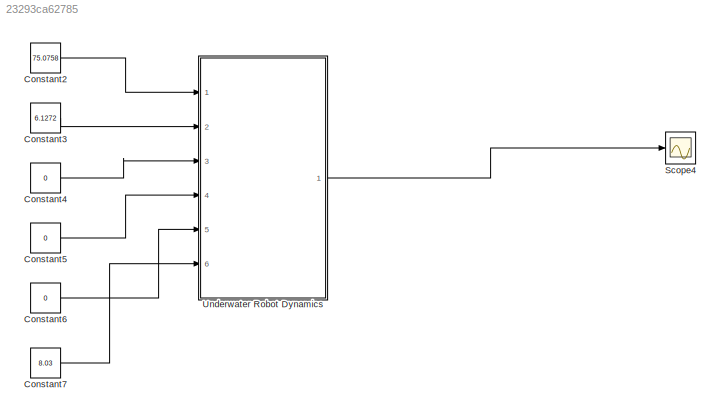
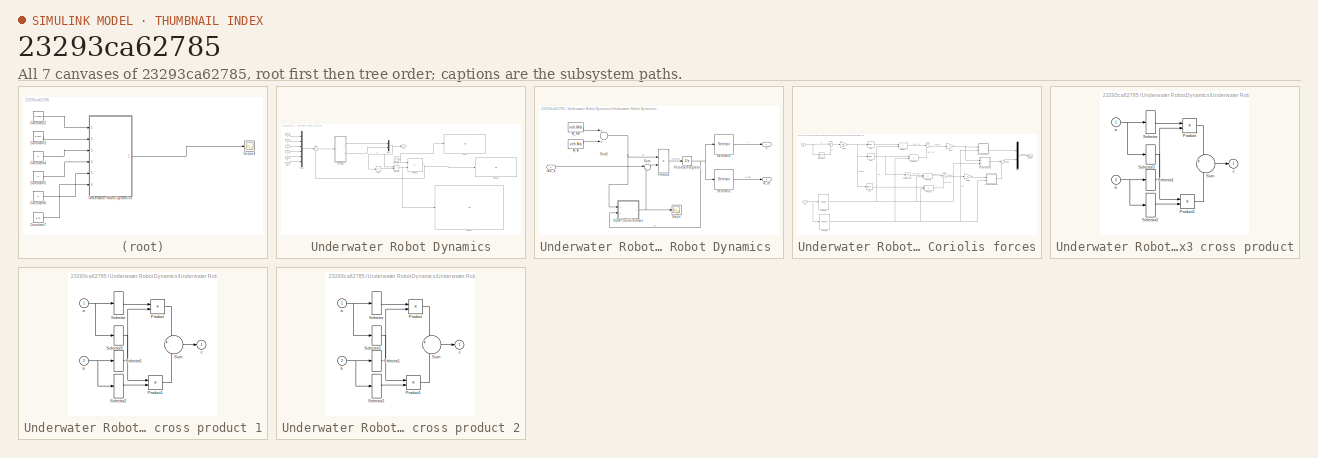
[diagram: thumbnail index - all 7 canvases of the model, root first then tree order]
MODEL slx_23293ca62785
KIND model
CONFIG AbsTol = auto
CONFIG EnableMultiTasking = on
CONFIG FixedStep = auto
CONFIG MaxStep = auto
CONFIG MinStep = auto
CONFIG RelTol = 1e-3
CONFIG SampleTimeConstraint = Unconstrained
CONFIG Solver = VariableStepAuto
CONFIG SolverName = VariableStepAuto
CONFIG StartTime = 0.0
CONFIG StopTime = 2000
BLOCK [Constant] Constant2
  Value = 75.0758
BLOCK [Constant] Constant3
  Value = 6.1272
BLOCK [Constant] Constant4
  Value = 0
BLOCK [Constant] Constant5
  Value = 0
BLOCK [Constant] Constant6
  Value = 0
BLOCK [Constant] Constant7
  Value = 8.03
BLOCK [Scope] Scope4
  NumInputPorts = 1
  Ports = [1]
  ScopeSpecificationString = Simulink.scopes.TimeScopeBlockCfg('CurrentConfiguration', extmgr.ConfigurationSet(extmgr.Configuration('Core','General UI',true),extmgr.Configuration('Core','Source UI',true),extmgr.Configuration('Sources','WiredSimulink',true,'DataLoggingVariableName','ScopeData4'),extmgr.Configuration('Visuals','Time Domain',true,'SerializedDisplays',{struct('MinYLimReal','-1.08142','MaxYLimReal','2.52146','YLab...<+1590ch>
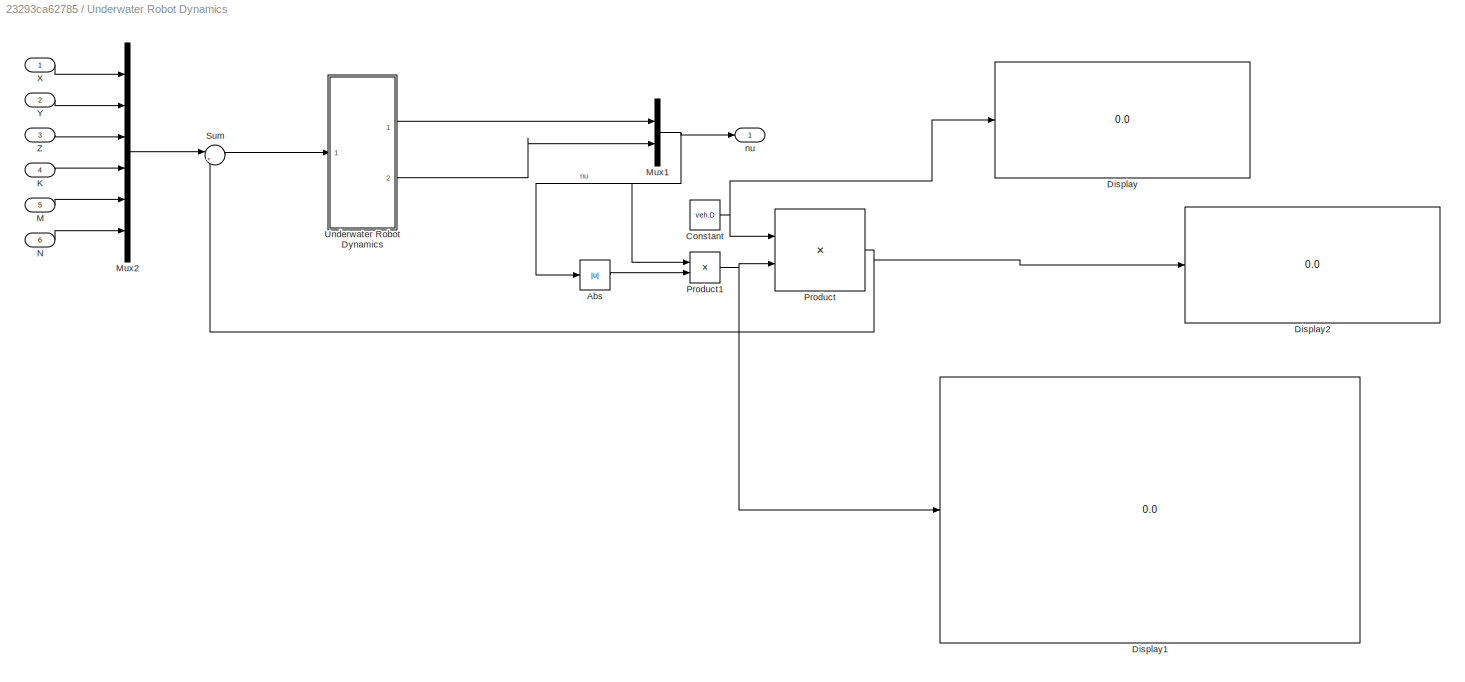
BLOCK [SubSystem] Underwater Robot Dynamics
  Ports = [6, 1]
  RequestExecContextInheritance = off
  Variant = off
BLOCK [Abs] Underwater Robot Dynamics/Abs
  SaturateOnIntegerOverflow = off
BLOCK [Constant] Underwater Robot Dynamics/Constant
  Value = veh.D
BLOCK [Display] Underwater Robot Dynamics/Display
  Decimation = 1
  Ports = [1]
BLOCK [Display] Underwater Robot Dynamics/Display1
  Decimation = 1
  Ports = [1]
BLOCK [Display] Underwater Robot Dynamics/Display2
  Decimation = 1
  Ports = [1]
BLOCK [Inport] Underwater Robot Dynamics/K
  IconDisplay = Port number
  Port = 4
BLOCK [Inport] Underwater Robot Dynamics/M
  IconDisplay = Port number
  Port = 5
BLOCK [Mux] Underwater Robot Dynamics/Mux1
  DisplayOption = bar
  Inputs = 2
  Ports = [2, 1]
BLOCK [Mux] Underwater Robot Dynamics/Mux2
  DisplayOption = bar
  Inputs = 6
  Ports = [6, 1]
BLOCK [Inport] Underwater Robot Dynamics/N
  IconDisplay = Port number
  Port = 6
BLOCK [Product] Underwater Robot Dynamics/Product
  InputSameDT = off
  Multiplication = Matrix(*)
  OutDataTypeStr = Inherit: Inherit via internal rule
  Ports = [2, 1]
  RndMeth = Floor
  SaturateOnIntegerOverflow = off
BLOCK [Product] Underwater Robot Dynamics/Product1
  InputSameDT = off
  OutDataTypeStr = Inherit: Inherit via internal rule
  Ports = [2, 1]
  RndMeth = Floor
  SaturateOnIntegerOverflow = off
BLOCK [Sum] Underwater Robot Dynamics/Sum
  IconShape = round
  InputSameDT = off
  Inputs = |+-
  OutDataTypeStr = Inherit: Inherit via internal rule
  Ports = [2, 1]
  SaturateOnIntegerOverflow = off
BLOCK [SubSystem] Underwater Robot Dynamics/Underwater Robot Dynamics 
  Ports = [1, 2]
  RequestExecContextInheritance = off
  Variant = off
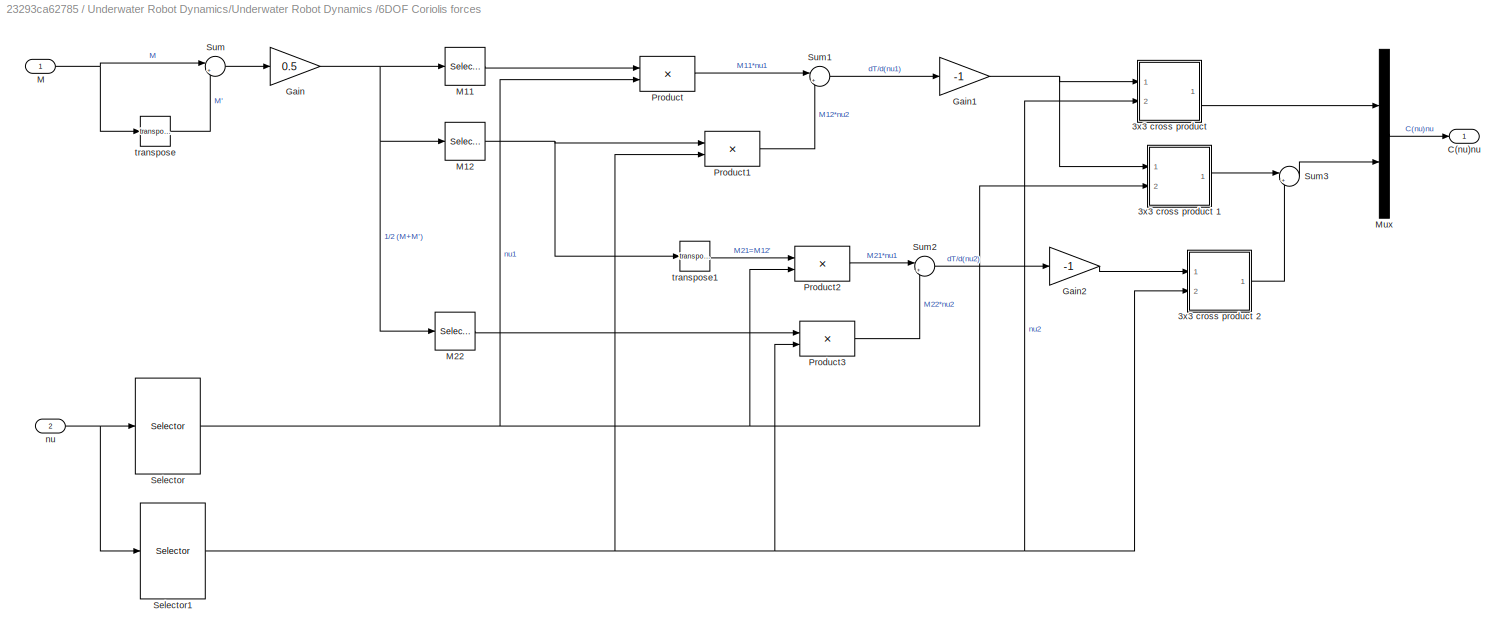
BLOCK [SubSystem] Underwater Robot Dynamics/Underwater Robot Dynamics /6DOF Coriolis forces
  Ports = [2, 1]
  RequestExecContextInheritance = off
  Variant = off
BLOCK [SubSystem] Underwater Robot Dynamics/Underwater Robot Dynamics /6DOF Coriolis forces/3x3 cross product
  Ports = [2, 1]
  RequestExecContextInheritance = off
  Variant = off
BLOCK [SubSystem] Underwater Robot Dynamics/Underwater Robot Dynamics /6DOF Coriolis forces/3x3 cross product 1
  Ports = [2, 1]
  RequestExecContextInheritance = off
  Variant = off
BLOCK [Product] Underwater Robot Dynamics/Underwater Robot Dynamics /6DOF Coriolis forces/3x3 cross product 1/Product
  Ports = [2, 1]
  RndMeth = Floor
BLOCK [Product] Underwater Robot Dynamics/Underwater Robot Dynamics /6DOF Coriolis forces/3x3 cross product 1/Product1
  Ports = [2, 1]
  RndMeth = Floor
BLOCK [Selector] Underwater Robot Dynamics/Underwater Robot Dynamics /6DOF Coriolis forces/3x3 cross product 1/Selector
  IndexOptions = Index vector (dialog)
  Indices = [2 3 1]
  InputPortWidth = 3
  OutputSizes = 1
  Ports = [1, 1]
BLOCK [Selector] Underwater Robot Dynamics/Underwater Robot Dynamics /6DOF Coriolis forces/3x3 cross product 1/Selector1
  IndexOptions = Index vector (dialog)
  Indices = [3 1 2]
  InputPortWidth = 3
  OutputSizes = 1
  Ports = [1, 1]
BLOCK [Selector] Underwater Robot Dynamics/Underwater Robot Dynamics /6DOF Coriolis forces/3x3 cross product 1/Selector2
  IndexOptions = Index vector (dialog)
  Indices = [2 3 1]
  InputPortWidth = 3
  OutputSizes = 1
  Ports = [1, 1]
BLOCK [Selector] Underwater Robot Dynamics/Underwater Robot Dynamics /6DOF Coriolis forces/3x3 cross product 1/Selector3
  IndexOptions = Index vector (dialog)
  Indices = [3 1 2]
  InputPortWidth = 3
  OutputSizes = 1
  Ports = [1, 1]
BLOCK [Sum] Underwater Robot Dynamics/Underwater Robot Dynamics /6DOF Coriolis forces/3x3 cross product 1/Sum
  IconShape = round
  Inputs = +|-
  Ports = [2, 1]
BLOCK [Inport] Underwater Robot Dynamics/Underwater Robot Dynamics /6DOF Coriolis forces/3x3 cross product 1/a
  IconDisplay = Port number
BLOCK [Inport] Underwater Robot Dynamics/Underwater Robot Dynamics /6DOF Coriolis forces/3x3 cross product 1/b
  IconDisplay = Port number
  Port = 2
BLOCK [Outport] Underwater Robot Dynamics/Underwater Robot Dynamics /6DOF Coriolis forces/3x3 cross product 1/c
  IconDisplay = Port number
  InitialOutput = 0
BLOCK [SubSystem] Underwater Robot Dynamics/Underwater Robot Dynamics /6DOF Coriolis forces/3x3 cross product 2
  Ports = [2, 1]
  RequestExecContextInheritance = off
  Variant = off
BLOCK [Product] Underwater Robot Dynamics/Underwater Robot Dynamics /6DOF Coriolis forces/3x3 cross product 2/Product
  Ports = [2, 1]
  RndMeth = Floor
BLOCK [Product] Underwater Robot Dynamics/Underwater Robot Dynamics /6DOF Coriolis forces/3x3 cross product 2/Product1
  Ports = [2, 1]
  RndMeth = Floor
BLOCK [Selector] Underwater Robot Dynamics/Underwater Robot Dynamics /6DOF Coriolis forces/3x3 cross product 2/Selector
  IndexOptions = Index vector (dialog)
  Indices = [2 3 1]
  InputPortWidth = 3
  OutputSizes = 1
  Ports = [1, 1]
BLOCK [Selector] Underwater Robot Dynamics/Underwater Robot Dynamics /6DOF Coriolis forces/3x3 cross product 2/Selector1
  IndexOptions = Index vector (dialog)
  Indices = [3 1 2]
  InputPortWidth = 3
  OutputSizes = 1
  Ports = [1, 1]
BLOCK [Selector] Underwater Robot Dynamics/Underwater Robot Dynamics /6DOF Coriolis forces/3x3 cross product 2/Selector2
  IndexOptions = Index vector (dialog)
  Indices = [2 3 1]
  InputPortWidth = 3
  OutputSizes = 1
  Ports = [1, 1]
BLOCK [Selector] Underwater Robot Dynamics/Underwater Robot Dynamics /6DOF Coriolis forces/3x3 cross product 2/Selector3
  IndexOptions = Index vector (dialog)
  Indices = [3 1 2]
  InputPortWidth = 3
  OutputSizes = 1
  Ports = [1, 1]
BLOCK [Sum] Underwater Robot Dynamics/Underwater Robot Dynamics /6DOF Coriolis forces/3x3 cross product 2/Sum
  IconShape = round
  Inputs = +|-
  Ports = [2, 1]
BLOCK [Inport] Underwater Robot Dynamics/Underwater Robot Dynamics /6DOF Coriolis forces/3x3 cross product 2/a
  IconDisplay = Port number
BLOCK [Inport] Underwater Robot Dynamics/Underwater Robot Dynamics /6DOF Coriolis forces/3x3 cross product 2/b
  IconDisplay = Port number
  Port = 2
BLOCK [Outport] Underwater Robot Dynamics/Underwater Robot Dynamics /6DOF Coriolis forces/3x3 cross product 2/c
  IconDisplay = Port number
  InitialOutput = 0
BLOCK [Product] Underwater Robot Dynamics/Underwater Robot Dynamics /6DOF Coriolis forces/3x3 cross product/Product
  Ports = [2, 1]
  RndMeth = Floor
BLOCK [Product] Underwater Robot Dynamics/Underwater Robot Dynamics /6DOF Coriolis forces/3x3 cross product/Product1
  Ports = [2, 1]
  RndMeth = Floor
BLOCK [Selector] Underwater Robot Dynamics/Underwater Robot Dynamics /6DOF Coriolis forces/3x3 cross product/Selector
  IndexOptions = Index vector (dialog)
  Indices = [2 3 1]
  InputPortWidth = 3
  OutputSizes = 1
  Ports = [1, 1]
BLOCK [Selector] Underwater Robot Dynamics/Underwater Robot Dynamics /6DOF Coriolis forces/3x3 cross product/Selector1
  IndexOptions = Index vector (dialog)
  Indices = [3 1 2]
  InputPortWidth = 3
  OutputSizes = 1
  Ports = [1, 1]
BLOCK [Selector] Underwater Robot Dynamics/Underwater Robot Dynamics /6DOF Coriolis forces/3x3 cross product/Selector2
  IndexOptions = Index vector (dialog)
  Indices = [2 3 1]
  InputPortWidth = 3
  OutputSizes = 1
  Ports = [1, 1]
BLOCK [Selector] Underwater Robot Dynamics/Underwater Robot Dynamics /6DOF Coriolis forces/3x3 cross product/Selector3
  IndexOptions = Index vector (dialog)
  Indices = [3 1 2]
  InputPortWidth = 3
  OutputSizes = 1
  Ports = [1, 1]
BLOCK [Sum] Underwater Robot Dynamics/Underwater Robot Dynamics /6DOF Coriolis forces/3x3 cross product/Sum
  IconShape = round
  Inputs = +|-
  Ports = [2, 1]
BLOCK [Inport] Underwater Robot Dynamics/Underwater Robot Dynamics /6DOF Coriolis forces/3x3 cross product/a
  IconDisplay = Port number
BLOCK [Inport] Underwater Robot Dynamics/Underwater Robot Dynamics /6DOF Coriolis forces/3x3 cross product/b
  IconDisplay = Port number
  Port = 2
BLOCK [Outport] Underwater Robot Dynamics/Underwater Robot Dynamics /6DOF Coriolis forces/3x3 cross product/c
  IconDisplay = Port number
  InitialOutput = 0
BLOCK [Outport] Underwater Robot Dynamics/Underwater Robot Dynamics /6DOF Coriolis forces/C(nu)nu
  IconDisplay = Port number
BLOCK [Gain] Underwater Robot Dynamics/Underwater Robot Dynamics /6DOF Coriolis forces/Gain
  Gain = 0.5
BLOCK [Gain] Underwater Robot Dynamics/Underwater Robot Dynamics /6DOF Coriolis forces/Gain1
  Gain = -1
BLOCK [Gain] Underwater Robot Dynamics/Underwater Robot Dynamics /6DOF Coriolis forces/Gain2
  Gain = -1
BLOCK [Inport] Underwater Robot Dynamics/Underwater Robot Dynamics /6DOF Coriolis forces/M
  IconDisplay = Port number
BLOCK [Selector] Underwater Robot Dynamics/Underwater Robot Dynamics /6DOF Coriolis forces/M11
  IndexOptions = Index vector (dialog),Index vector (dialog)
  Indices = [1 2 3],[1 2 3]
  InputPortWidth = 3
  NumberOfDimensions = 2
  OutputSizes = 1
  Ports = [1, 1]
BLOCK [Selector] Underwater Robot Dynamics/Underwater Robot Dynamics /6DOF Coriolis forces/M12
  IndexOptions = Index vector (dialog),Index vector (dialog)
  Indices = [1 2 3],[4 5 6]
  InputPortWidth = 3
  NumberOfDimensions = 2
  OutputSizes = 1
  Ports = [1, 1]
BLOCK [Selector] Underwater Robot Dynamics/Underwater Robot Dynamics /6DOF Coriolis forces/M22
  IndexOptions = Index vector (dialog),Index vector (dialog)
  Indices = [4 5 6],[4 5 6]
  InputPortWidth = 3
  NumberOfDimensions = 2
  OutputSizes = 1
  Ports = [1, 1]
BLOCK [Mux] Underwater Robot Dynamics/Underwater Robot Dynamics /6DOF Coriolis forces/Mux
  DisplayOption = bar
  Inputs = 2
  Ports = [2, 1]
BLOCK [Product] Underwater Robot Dynamics/Underwater Robot Dynamics /6DOF Coriolis forces/Product
  InputSameDT = off
  Multiplication = Matrix(*)
  Ports = [2, 1]
  RndMeth = Floor
BLOCK [Product] Underwater Robot Dynamics/Underwater Robot Dynamics /6DOF Coriolis forces/Product1
  InputSameDT = off
  Multiplication = Matrix(*)
  Ports = [2, 1]
  RndMeth = Floor
BLOCK [Product] Underwater Robot Dynamics/Underwater Robot Dynamics /6DOF Coriolis forces/Product2
  InputSameDT = off
  Multiplication = Matrix(*)
  Ports = [2, 1]
  RndMeth = Floor
BLOCK [Product] Underwater Robot Dynamics/Underwater Robot Dynamics /6DOF Coriolis forces/Product3
  InputSameDT = off
  Multiplication = Matrix(*)
  Ports = [2, 1]
  RndMeth = Floor
BLOCK [Selector] Underwater Robot Dynamics/Underwater Robot Dynamics /6DOF Coriolis forces/Selector
  IndexOptions = Index vector (dialog)
  Indices = [1 2 3]
  InputPortWidth = 6
  OutputSizes = 1
  Ports = [1, 1]
BLOCK [Selector] Underwater Robot Dynamics/Underwater Robot Dynamics /6DOF Coriolis forces/Selector1
  IndexOptions = Index vector (dialog)
  Indices = [4 5 6]
  InputPortWidth = 6
  OutputSizes = 1
  Ports = [1, 1]
BLOCK [Sum] Underwater Robot Dynamics/Underwater Robot Dynamics /6DOF Coriolis forces/Sum
  IconShape = round
  InputSameDT = off
  Inputs = |++
  OutDataTypeStr = Inherit: Inherit via internal rule
  Ports = [2, 1]
BLOCK [Sum] Underwater Robot Dynamics/Underwater Robot Dynamics /6DOF Coriolis forces/Sum1
  IconShape = round
  InputSameDT = off
  Inputs = |++
  OutDataTypeStr = Inherit: Inherit via internal rule
  Ports = [2, 1]
BLOCK [Sum] Underwater Robot Dynamics/Underwater Robot Dynamics /6DOF Coriolis forces/Sum2
  IconShape = round
  InputSameDT = off
  Inputs = |++
  OutDataTypeStr = Inherit: Inherit via internal rule
  Ports = [2, 1]
BLOCK [Sum] Underwater Robot Dynamics/Underwater Robot Dynamics /6DOF Coriolis forces/Sum3
  IconShape = round
  InputSameDT = off
  Inputs = |++
  OutDataTypeStr = Inherit: Inherit via internal rule
  Ports = [2, 1]
BLOCK [Inport] Underwater Robot Dynamics/Underwater Robot Dynamics /6DOF Coriolis forces/nu
  IconDisplay = Port number
  Port = 2
BLOCK [Math] Underwater Robot Dynamics/Underwater Robot Dynamics /6DOF Coriolis forces/transpose
  Operator = transpose
  Ports = [1, 1]
BLOCK [Math] Underwater Robot Dynamics/Underwater Robot Dynamics /6DOF Coriolis forces/transpose1
  Operator = transpose
  Ports = [1, 1]
BLOCK [Constant] Underwater Robot Dynamics/Underwater Robot Dynamics /M_A
  Value = veh.Ma
BLOCK [Constant] Underwater Robot Dynamics/Underwater Robot Dynamics /M_RB
  Value = veh.Mrb
BLOCK [Product] Underwater Robot Dynamics/Underwater Robot Dynamics /Product
  InputSameDT = off
  Inputs = /*
  Multiplication = Matrix(*)
  Ports = [2, 1]
  RndMeth = Floor
BLOCK [Scope] Underwater Robot Dynamics/Underwater Robot Dynamics /Scope
  NumInputPorts = 1
  Ports = [1]
  ScopeSpecificationString = Simulink.scopes.TimeScopeBlockCfg('CurrentConfiguration', extmgr.ConfigurationSet(extmgr.Configuration('Core','General UI',true),extmgr.Configuration('Core','Source UI',true),extmgr.Configuration('Sources','WiredSimulink',true,'DataLoggingVariableName','ScopeData3'),extmgr.Configuration('Visuals','Time Domain',true,'SerializedDisplays',{struct('MinYLimReal','-1.00000','MaxYLimReal','1.00000','YLab...<+1560ch>
BLOCK [Selector] Underwater Robot Dynamics/Underwater Robot Dynamics /Selector1
  IndexOptions = Index vector (dialog)
  Indices = [1 2 3]
  InputPortWidth = 6
  OutputSizes = 1
  Ports = [1, 1]
BLOCK [Selector] Underwater Robot Dynamics/Underwater Robot Dynamics /Selector2
  IndexOptions = Index vector (dialog)
  Indices = [4 5 6]
  InputPortWidth = 6
  OutputSizes = 1
  Ports = [1, 1]
BLOCK [Sum] Underwater Robot Dynamics/Underwater Robot Dynamics /Sum
  IconShape = round
  InputSameDT = off
  Inputs = |+-
  OutDataTypeStr = Inherit: Inherit via internal rule
  Ports = [2, 1]
  SaturateOnIntegerOverflow = off
BLOCK [Sum] Underwater Robot Dynamics/Underwater Robot Dynamics /Sum2
  InputSameDT = off
  OutDataTypeStr = Inherit: Inherit via internal rule
  Ports = [2, 1]
BLOCK [Integrator] Underwater Robot Dynamics/Underwater Robot Dynamics /Velocity Integrator
  Ports = [1, 1]
BLOCK [Inport] Underwater Robot Dynamics/Underwater Robot Dynamics /tau_b
  IconDisplay = Port number
BLOCK [Outport] Underwater Robot Dynamics/Underwater Robot Dynamics /v
  IconDisplay = Port number
BLOCK [Outport] Underwater Robot Dynamics/Underwater Robot Dynamics /w_ib
  IconDisplay = Port number
  Port = 2
BLOCK [Inport] Underwater Robot Dynamics/X
  IconDisplay = Port number
BLOCK [Inport] Underwater Robot Dynamics/Y
  IconDisplay = Port number
  Port = 2
BLOCK [Inport] Underwater Robot Dynamics/Z
  IconDisplay = Port number
  Port = 3
BLOCK [Outport] Underwater Robot Dynamics/nu
  IconDisplay = Port number
LINE Constant2:1 -> Underwater Robot Dynamics:1
LINE Constant3:1 -> Underwater Robot Dynamics:2
LINE Constant4:1 -> Underwater Robot Dynamics:3
LINE Constant5:1 -> Underwater Robot Dynamics:4
LINE Constant6:1 -> Underwater Robot Dynamics:5
LINE Constant7:1 -> Underwater Robot Dynamics:6
LINE Underwater Robot Dynamics/Abs:1 -> Underwater Robot Dynamics/Product1:2
NET Underwater Robot Dynamics/Constant:1 -> Underwater Robot Dynamics/Display:1, Underwater Robot Dynamics/Product:1
LINE Underwater Robot Dynamics/K:1 -> Underwater Robot Dynamics/Mux2:4
LINE Underwater Robot Dynamics/M:1 -> Underwater Robot Dynamics/Mux2:5
NET Underwater Robot Dynamics/Mux1:1 -> Underwater Robot Dynamics/Abs:1, Underwater Robot Dynamics/Product1:1, Underwater Robot Dynamics/nu:1
LINE Underwater Robot Dynamics/Mux2:1 -> Underwater Robot Dynamics/Sum:1
LINE Underwater Robot Dynamics/N:1 -> Underwater Robot Dynamics/Mux2:6
NET Underwater Robot Dynamics/Product1:1 -> Underwater Robot Dynamics/Display1:1, Underwater Robot Dynamics/Product:2
NET Underwater Robot Dynamics/Product:1 -> Underwater Robot Dynamics/Display2:1, Underwater Robot Dynamics/Sum:2
LINE Underwater Robot Dynamics/Sum:1 -> Underwater Robot Dynamics/Underwater Robot Dynamics :1
LINE Underwater Robot Dynamics/Underwater Robot Dynamics /6DOF Coriolis forces/3x3 cross product 1/Product1:1 -> Underwater Robot Dynamics/Underwater Robot Dynamics /6DOF Coriolis forces/3x3 cross product 1/Sum:2
LINE Underwater Robot Dynamics/Underwater Robot Dynamics /6DOF Coriolis forces/3x3 cross product 1/Product:1 -> Underwater Robot Dynamics/Underwater Robot Dynamics /6DOF Coriolis forces/3x3 cross product 1/Sum:1
LINE Underwater Robot Dynamics/Underwater Robot Dynamics /6DOF Coriolis forces/3x3 cross product 1/Selector1:1 -> Underwater Robot Dynamics/Underwater Robot Dynamics /6DOF Coriolis forces/3x3 cross product 1/Product:2
LINE Underwater Robot Dynamics/Underwater Robot Dynamics /6DOF Coriolis forces/3x3 cross product 1/Selector2:1 -> Underwater Robot Dynamics/Underwater Robot Dynamics /6DOF Coriolis forces/3x3 cross product 1/Product1:2
LINE Underwater Robot Dynamics/Underwater Robot Dynamics /6DOF Coriolis forces/3x3 cross product 1/Selector3:1 -> Underwater Robot Dynamics/Underwater Robot Dynamics /6DOF Coriolis forces/3x3 cross product 1/Product1:1
LINE Underwater Robot Dynamics/Underwater Robot Dynamics /6DOF Coriolis forces/3x3 cross product 1/Selector:1 -> Underwater Robot Dynamics/Underwater Robot Dynamics /6DOF Coriolis forces/3x3 cross product 1/Product:1
LINE Underwater Robot Dynamics/Underwater Robot Dynamics /6DOF Coriolis forces/3x3 cross product 1/Sum:1 -> Underwater Robot Dynamics/Underwater Robot Dynamics /6DOF Coriolis forces/3x3 cross product 1/c:1
NET Underwater Robot Dynamics/Underwater Robot Dynamics /6DOF Coriolis forces/3x3 cross product 1/a:1 -> Underwater Robot Dynamics/Underwater Robot Dynamics /6DOF Coriolis forces/3x3 cross product 1/Selector3:1, Underwater Robot Dynamics/Underwater Robot Dynamics /6DOF Coriolis forces/3x3 cross product 1/Selector:1
NET Underwater Robot Dynamics/Underwater Robot Dynamics /6DOF Coriolis forces/3x3 cross product 1/b:1 -> Underwater Robot Dynamics/Underwater Robot Dynamics /6DOF Coriolis forces/3x3 cross product 1/Selector1:1, Underwater Robot Dynamics/Underwater Robot Dynamics /6DOF Coriolis forces/3x3 cross product 1/Selector2:1
LINE Underwater Robot Dynamics/Underwater Robot Dynamics /6DOF Coriolis forces/3x3 cross product 1:1 -> Underwater Robot Dynamics/Underwater Robot Dynamics /6DOF Coriolis forces/Sum3:1
LINE Underwater Robot Dynamics/Underwater Robot Dynamics /6DOF Coriolis forces/3x3 cross product 2/Product1:1 -> Underwater Robot Dynamics/Underwater Robot Dynamics /6DOF Coriolis forces/3x3 cross product 2/Sum:2
LINE Underwater Robot Dynamics/Underwater Robot Dynamics /6DOF Coriolis forces/3x3 cross product 2/Product:1 -> Underwater Robot Dynamics/Underwater Robot Dynamics /6DOF Coriolis forces/3x3 cross product 2/Sum:1
LINE Underwater Robot Dynamics/Underwater Robot Dynamics /6DOF Coriolis forces/3x3 cross product 2/Selector1:1 -> Underwater Robot Dynamics/Underwater Robot Dynamics /6DOF Coriolis forces/3x3 cross product 2/Product:2
LINE Underwater Robot Dynamics/Underwater Robot Dynamics /6DOF Coriolis forces/3x3 cross product 2/Selector2:1 -> Underwater Robot Dynamics/Underwater Robot Dynamics /6DOF Coriolis forces/3x3 cross product 2/Product1:2
LINE Underwater Robot Dynamics/Underwater Robot Dynamics /6DOF Coriolis forces/3x3 cross product 2/Selector3:1 -> Underwater Robot Dynamics/Underwater Robot Dynamics /6DOF Coriolis forces/3x3 cross product 2/Product1:1
LINE Underwater Robot Dynamics/Underwater Robot Dynamics /6DOF Coriolis forces/3x3 cross product 2/Selector:1 -> Underwater Robot Dynamics/Underwater Robot Dynamics /6DOF Coriolis forces/3x3 cross product 2/Product:1
LINE Underwater Robot Dynamics/Underwater Robot Dynamics /6DOF Coriolis forces/3x3 cross product 2/Sum:1 -> Underwater Robot Dynamics/Underwater Robot Dynamics /6DOF Coriolis forces/3x3 cross product 2/c:1
NET Underwater Robot Dynamics/Underwater Robot Dynamics /6DOF Coriolis forces/3x3 cross product 2/a:1 -> Underwater Robot Dynamics/Underwater Robot Dynamics /6DOF Coriolis forces/3x3 cross product 2/Selector3:1, Underwater Robot Dynamics/Underwater Robot Dynamics /6DOF Coriolis forces/3x3 cross product 2/Selector:1
NET Underwater Robot Dynamics/Underwater Robot Dynamics /6DOF Coriolis forces/3x3 cross product 2/b:1 -> Underwater Robot Dynamics/Underwater Robot Dynamics /6DOF Coriolis forces/3x3 cross product 2/Selector1:1, Underwater Robot Dynamics/Underwater Robot Dynamics /6DOF Coriolis forces/3x3 cross product 2/Selector2:1
LINE Underwater Robot Dynamics/Underwater Robot Dynamics /6DOF Coriolis forces/3x3 cross product 2:1 -> Underwater Robot Dynamics/Underwater Robot Dynamics /6DOF Coriolis forces/Sum3:2
LINE Underwater Robot Dynamics/Underwater Robot Dynamics /6DOF Coriolis forces/3x3 cross product/Product1:1 -> Underwater Robot Dynamics/Underwater Robot Dynamics /6DOF Coriolis forces/3x3 cross product/Sum:2
LINE Underwater Robot Dynamics/Underwater Robot Dynamics /6DOF Coriolis forces/3x3 cross product/Product:1 -> Underwater Robot Dynamics/Underwater Robot Dynamics /6DOF Coriolis forces/3x3 cross product/Sum:1
LINE Underwater Robot Dynamics/Underwater Robot Dynamics /6DOF Coriolis forces/3x3 cross product/Selector1:1 -> Underwater Robot Dynamics/Underwater Robot Dynamics /6DOF Coriolis forces/3x3 cross product/Product:2
LINE Underwater Robot Dynamics/Underwater Robot Dynamics /6DOF Coriolis forces/3x3 cross product/Selector2:1 -> Underwater Robot Dynamics/Underwater Robot Dynamics /6DOF Coriolis forces/3x3 cross product/Product1:2
LINE Underwater Robot Dynamics/Underwater Robot Dynamics /6DOF Coriolis forces/3x3 cross product/Selector3:1 -> Underwater Robot Dynamics/Underwater Robot Dynamics /6DOF Coriolis forces/3x3 cross product/Product1:1
LINE Underwater Robot Dynamics/Underwater Robot Dynamics /6DOF Coriolis forces/3x3 cross product/Selector:1 -> Underwater Robot Dynamics/Underwater Robot Dynamics /6DOF Coriolis forces/3x3 cross product/Product:1
LINE Underwater Robot Dynamics/Underwater Robot Dynamics /6DOF Coriolis forces/3x3 cross product/Sum:1 -> Underwater Robot Dynamics/Underwater Robot Dynamics /6DOF Coriolis forces/3x3 cross product/c:1
NET Underwater Robot Dynamics/Underwater Robot Dynamics /6DOF Coriolis forces/3x3 cross product/a:1 -> Underwater Robot Dynamics/Underwater Robot Dynamics /6DOF Coriolis forces/3x3 cross product/Selector3:1, Underwater Robot Dynamics/Underwater Robot Dynamics /6DOF Coriolis forces/3x3 cross product/Selector:1
NET Underwater Robot Dynamics/Underwater Robot Dynamics /6DOF Coriolis forces/3x3 cross product/b:1 -> Underwater Robot Dynamics/Underwater Robot Dynamics /6DOF Coriolis forces/3x3 cross product/Selector1:1, Underwater Robot Dynamics/Underwater Robot Dynamics /6DOF Coriolis forces/3x3 cross product/Selector2:1
LINE Underwater Robot Dynamics/Underwater Robot Dynamics /6DOF Coriolis forces/3x3 cross product:1 -> Underwater Robot Dynamics/Underwater Robot Dynamics /6DOF Coriolis forces/Mux:1
NET Underwater Robot Dynamics/Underwater Robot Dynamics /6DOF Coriolis forces/Gain1:1 -> Underwater Robot Dynamics/Underwater Robot Dynamics /6DOF Coriolis forces/3x3 cross product 1:1, Underwater Robot Dynamics/Underwater Robot Dynamics /6DOF Coriolis forces/3x3 cross product:1
LINE Underwater Robot Dynamics/Underwater Robot Dynamics /6DOF Coriolis forces/Gain2:1 -> Underwater Robot Dynamics/Underwater Robot Dynamics /6DOF Coriolis forces/3x3 cross product 2:1
NET Underwater Robot Dynamics/Underwater Robot Dynamics /6DOF Coriolis forces/Gain:1 -> Underwater Robot Dynamics/Underwater Robot Dynamics /6DOF Coriolis forces/M11:1, Underwater Robot Dynamics/Underwater Robot Dynamics /6DOF Coriolis forces/M12:1, Underwater Robot Dynamics/Underwater Robot Dynamics /6DOF Coriolis forces/M22:1
LINE Underwater Robot Dynamics/Underwater Robot Dynamics /6DOF Coriolis forces/M11:1 -> Underwater Robot Dynamics/Underwater Robot Dynamics /6DOF Coriolis forces/Product:1
NET Underwater Robot Dynamics/Underwater Robot Dynamics /6DOF Coriolis forces/M12:1 -> Underwater Robot Dynamics/Underwater Robot Dynamics /6DOF Coriolis forces/Product1:1, Underwater Robot Dynamics/Underwater Robot Dynamics /6DOF Coriolis forces/transpose1:1
LINE Underwater Robot Dynamics/Underwater Robot Dynamics /6DOF Coriolis forces/M22:1 -> Underwater Robot Dynamics/Underwater Robot Dynamics /6DOF Coriolis forces/Product3:1
NET Underwater Robot Dynamics/Underwater Robot Dynamics /6DOF Coriolis forces/M:1 -> Underwater Robot Dynamics/Underwater Robot Dynamics /6DOF Coriolis forces/Sum:1, Underwater Robot Dynamics/Underwater Robot Dynamics /6DOF Coriolis forces/transpose:1
LINE Underwater Robot Dynamics/Underwater Robot Dynamics /6DOF Coriolis forces/Mux:1 -> Underwater Robot Dynamics/Underwater Robot Dynamics /6DOF Coriolis forces/C(nu)nu:1
LINE Underwater Robot Dynamics/Underwater Robot Dynamics /6DOF Coriolis forces/Product1:1 -> Underwater Robot Dynamics/Underwater Robot Dynamics /6DOF Coriolis forces/Sum1:2
LINE Underwater Robot Dynamics/Underwater Robot Dynamics /6DOF Coriolis forces/Product2:1 -> Underwater Robot Dynamics/Underwater Robot Dynamics /6DOF Coriolis forces/Sum2:1
LINE Underwater Robot Dynamics/Underwater Robot Dynamics /6DOF Coriolis forces/Product3:1 -> Underwater Robot Dynamics/Underwater Robot Dynamics /6DOF Coriolis forces/Sum2:2
LINE Underwater Robot Dynamics/Underwater Robot Dynamics /6DOF Coriolis forces/Product:1 -> Underwater Robot Dynamics/Underwater Robot Dynamics /6DOF Coriolis forces/Sum1:1
NET Underwater Robot Dynamics/Underwater Robot Dynamics /6DOF Coriolis forces/Selector1:1 -> Underwater Robot Dynamics/Underwater Robot Dynamics /6DOF Coriolis forces/3x3 cross product 2:2, Underwater Robot Dynamics/Underwater Robot Dynamics /6DOF Coriolis forces/3x3 cross product:2, Underwater Robot Dynamics/Underwater Robot Dynamics /6DOF Coriolis forces/Product1:2, Underwater Robot Dynamics/Underwater Robot Dynamics /6DOF Coriolis forces/Product3:2
NET Underwater Robot Dynamics/Underwater Robot Dynamics /6DOF Coriolis forces/Selector:1 -> Underwater Robot Dynamics/Underwater Robot Dynamics /6DOF Coriolis forces/3x3 cross product 1:2, Underwater Robot Dynamics/Underwater Robot Dynamics /6DOF Coriolis forces/Product2:2, Underwater Robot Dynamics/Underwater Robot Dynamics /6DOF Coriolis forces/Product:2
LINE Underwater Robot Dynamics/Underwater Robot Dynamics /6DOF Coriolis forces/Sum1:1 -> Underwater Robot Dynamics/Underwater Robot Dynamics /6DOF Coriolis forces/Gain1:1
LINE Underwater Robot Dynamics/Underwater Robot Dynamics /6DOF Coriolis forces/Sum2:1 -> Underwater Robot Dynamics/Underwater Robot Dynamics /6DOF Coriolis forces/Gain2:1
LINE Underwater Robot Dynamics/Underwater Robot Dynamics /6DOF Coriolis forces/Sum3:1 -> Underwater Robot Dynamics/Underwater Robot Dynamics /6DOF Coriolis forces/Mux:2
LINE Underwater Robot Dynamics/Underwater Robot Dynamics /6DOF Coriolis forces/Sum:1 -> Underwater Robot Dynamics/Underwater Robot Dynamics /6DOF Coriolis forces/Gain:1
NET Underwater Robot Dynamics/Underwater Robot Dynamics /6DOF Coriolis forces/nu:1 -> Underwater Robot Dynamics/Underwater Robot Dynamics /6DOF Coriolis forces/Selector1:1, Underwater Robot Dynamics/Underwater Robot Dynamics /6DOF Coriolis forces/Selector:1
LINE Underwater Robot Dynamics/Underwater Robot Dynamics /6DOF Coriolis forces/transpose1:1 -> Underwater Robot Dynamics/Underwater Robot Dynamics /6DOF Coriolis forces/Product2:1
LINE Underwater Robot Dynamics/Underwater Robot Dynamics /6DOF Coriolis forces/transpose:1 -> Underwater Robot Dynamics/Underwater Robot Dynamics /6DOF Coriolis forces/Sum:2
NET Underwater Robot Dynamics/Underwater Robot Dynamics /6DOF Coriolis forces:1 -> Underwater Robot Dynamics/Underwater Robot Dynamics /Scope:1, Underwater Robot Dynamics/Underwater Robot Dynamics /Sum:2
LINE Underwater Robot Dynamics/Underwater Robot Dynamics /M_A:1 -> Underwater Robot Dynamics/Underwater Robot Dynamics /Sum2:2
LINE Underwater Robot Dynamics/Underwater Robot Dynamics /M_RB:1 -> Underwater Robot Dynamics/Underwater Robot Dynamics /Sum2:1
LINE Underwater Robot Dynamics/Underwater Robot Dynamics /Product:1 -> Underwater Robot Dynamics/Underwater Robot Dynamics /Velocity Integrator:1
LINE Underwater Robot Dynamics/Underwater Robot Dynamics /Selector1:1 -> Underwater Robot Dynamics/Underwater Robot Dynamics /v:1
LINE Underwater Robot Dynamics/Underwater Robot Dynamics /Selector2:1 -> Underwater Robot Dynamics/Underwater Robot Dynamics /w_ib:1
NET Underwater Robot Dynamics/Underwater Robot Dynamics /Sum2:1 -> Underwater Robot Dynamics/Underwater Robot Dynamics /6DOF Coriolis forces:1, Underwater Robot Dynamics/Underwater Robot Dynamics /Product:1
LINE Underwater Robot Dynamics/Underwater Robot Dynamics /Sum:1 -> Underwater Robot Dynamics/Underwater Robot Dynamics /Product:2
NET Underwater Robot Dynamics/Underwater Robot Dynamics /Velocity Integrator:1 -> Underwater Robot Dynamics/Underwater Robot Dynamics /6DOF Coriolis forces:2, Underwater Robot Dynamics/Underwater Robot Dynamics /Selector1:1, Underwater Robot Dynamics/Underwater Robot Dynamics /Selector2:1
LINE Underwater Robot Dynamics/Underwater Robot Dynamics /tau_b:1 -> Underwater Robot Dynamics/Underwater Robot Dynamics /Sum:1
LINE Underwater Robot Dynamics/Underwater Robot Dynamics :1 -> Underwater Robot Dynamics/Mux1:1
LINE Underwater Robot Dynamics/Underwater Robot Dynamics :2 -> Underwater Robot Dynamics/Mux1:2
LINE Underwater Robot Dynamics/X:1 -> Underwater Robot Dynamics/Mux2:1
LINE Underwater Robot Dynamics/Y:1 -> Underwater Robot Dynamics/Mux2:2
LINE Underwater Robot Dynamics/Z:1 -> Underwater Robot Dynamics/Mux2:3
LINE Underwater Robot Dynamics:1 -> Scope4:1
note: NET lines group one-source signal fan-out (src -> all destinations, sorted); 1:1 wires keep LINE
